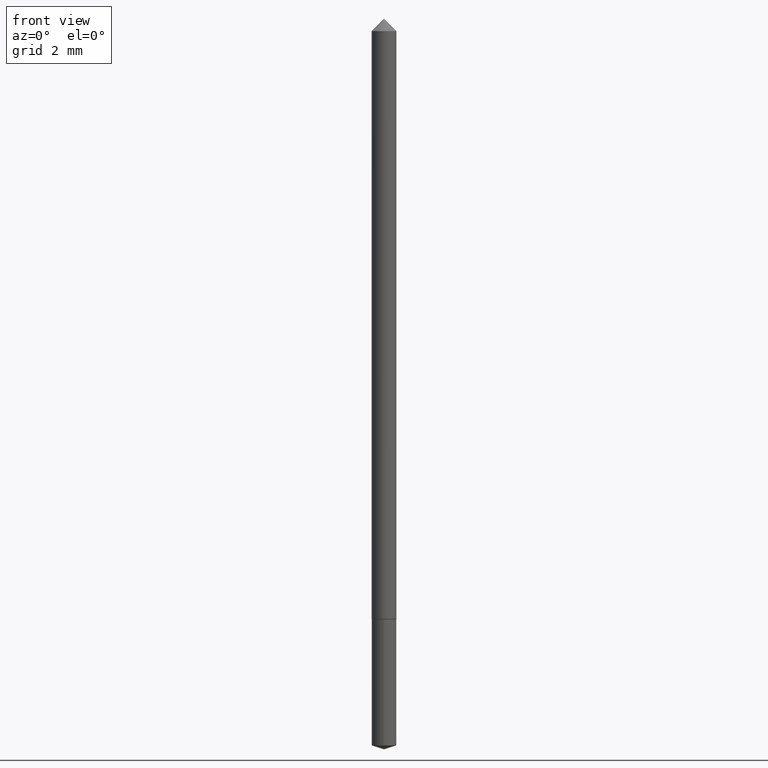
[diagram: clean part render]
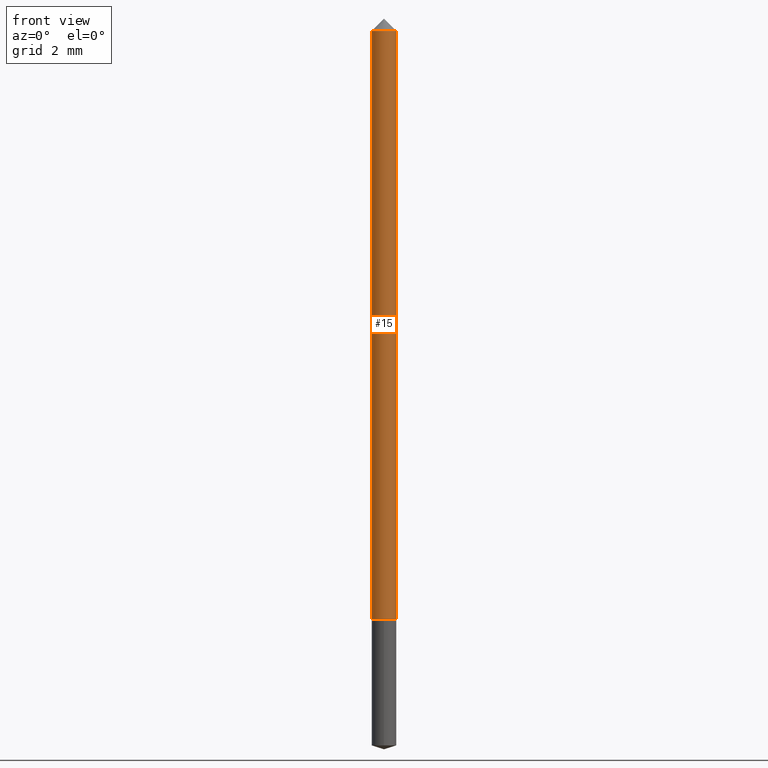
[diagram: same view with one face highlighted and labeled with its STEP entity id]
A machine part, front view. The second image highlights one B-rep face of the part: STEP entity #15.
In plain terms, the highlighted cylindrical surface (edge-blend (fillet) strip) has radius 0.4001 mm, axis along (-0, 0, 1).
Its self-contained STEP definition (entity closure, byte-faithful):
#14 = DIRECTION ( 'NONE',  ( -2.445468806185136877E-29, 3.491481338843145188E-15, 1.000000000000000000 ) ) ;
#15 = ADVANCED_FACE ( 'NONE', ( #66 ), #113, .T. ) ;
#21 = AXIS2_PLACEMENT_3D ( 'NONE', #362, #214, #78 ) ;
#36 = VECTOR ( 'NONE', #192, 39.37007874015748143 ) ;
#37 = CARTESIAN_POINT ( 'NONE',  ( 1.905020200018221761E-29, -2.719863962958810634E-15, -0.7790000000000000258 ) ) ;
#43 = CARTESIAN_POINT ( 'NONE',  ( 0.01575000000000005215, -1.099816621735590636E-16, 7.679978421878623957E-31 ) ) ;
#51 = EDGE_CURVE ( 'NONE', #253, #343, #181, .T. ) ;
#55 = DIRECTION ( 'NONE',  ( -2.445468806185136597E-29, 3.491481338843145583E-15, 1.000000000000000000 ) ) ;
#56 = ORIENTED_EDGE ( 'NONE', *, *, #51, .T. ) ;
#60 = ORIENTED_EDGE ( 'NONE', *, *, #355, .F. ) ;
#66 = FACE_OUTER_BOUND ( 'NONE', #347, .T. ) ;
#77 = LINE ( 'NONE', #43, #335 ) ;
#78 = DIRECTION ( 'NONE',  ( 1.000000000000000000, -6.982962677686266711E-15, 0.000000000000000000 ) ) ;
#85 = LINE ( 'NONE', #135, #36 ) ;
#113 = CYLINDRICAL_SURFACE ( 'NONE', #339, 0.01575000000000005215 ) ;
#134 = CARTESIAN_POINT ( 'NONE',  ( -0.01575000000000009726, -2.607953482076594164E-15, -0.7790000000000000258 ) ) ;
#135 = CARTESIAN_POINT ( 'NONE',  ( -0.01575000000000005215, 1.119104808822161498E-16, -7.747322767151501157E-31 ) ) ;
#140 = VERTEX_POINT ( 'NONE', #235 ) ;
#141 = EDGE_CURVE ( 'NONE', #343, #140, #77, .T. ) ;
#143 = DIRECTION ( 'NONE',  ( 1.000000000000000000, -6.982962677686266711E-15, 4.876176775795935793E-29 ) ) ;
#148 = DIRECTION ( 'NONE',  ( -2.445468806185136597E-29, 3.491481338843145583E-15, 1.000000000000000000 ) ) ;
#150 = ORIENTED_EDGE ( 'NONE', *, *, #141, .T. ) ;
#181 = CIRCLE ( 'NONE', #257, 0.01575000000000009726 ) ;
#192 = DIRECTION ( 'NONE',  ( -2.445468806185136877E-29, 3.491481338843145188E-15, 1.000000000000000000 ) ) ;
#214 = DIRECTION ( 'NONE',  ( -2.445468806185136597E-29, 3.491481338843145583E-15, 1.000000000000000000 ) ) ;
#220 = CARTESIAN_POINT ( 'NONE',  ( -0.01575000000000000358, -1.302575896516612017E-15, -0.03125000000000020123 ) ) ;
#222 = CIRCLE ( 'NONE', #21, 0.01575000000000000358 ) ;
#231 = CARTESIAN_POINT ( 'NONE',  ( 0.000000000000000000, 0.000000000000000000, 0.000000000000000000 ) ) ;
#235 = CARTESIAN_POINT ( 'NONE',  ( 0.01575000000000000358, -2.190904540124077205E-16, -0.03125000000000020123 ) ) ;
#253 = VERTEX_POINT ( 'NONE', #134 ) ;
#255 = CARTESIAN_POINT ( 'NONE',  ( 0.01575000000000009726, -2.829845625132370092E-15, -0.7790000000000000258 ) ) ;
#257 = AXIS2_PLACEMENT_3D ( 'NONE', #37, #148, #263 ) ;
#263 = DIRECTION ( 'NONE',  ( 1.000000000000000000, -6.982962677686273810E-15, 0.000000000000000000 ) ) ;
#264 = ORIENTED_EDGE ( 'NONE', *, *, #295, .F. ) ;
#295 = EDGE_CURVE ( 'NONE', #253, #313, #85, .T. ) ;
#313 = VERTEX_POINT ( 'NONE', #220 ) ;
#335 = VECTOR ( 'NONE', #14, 39.37007874015748143 ) ;
#339 = AXIS2_PLACEMENT_3D ( 'NONE', #231, #55, #143 ) ;
#343 = VERTEX_POINT ( 'NONE', #255 ) ;
#347 = EDGE_LOOP ( 'NONE', ( #264, #56, #150, #60 ) ) ;
#355 = EDGE_CURVE ( 'NONE', #313, #140, #222, .T. ) ;
#362 = CARTESIAN_POINT ( 'NONE',  ( 7.642090019328600035E-31, -1.091087918388489897E-16, -0.03125000000000020123 ) ) ;